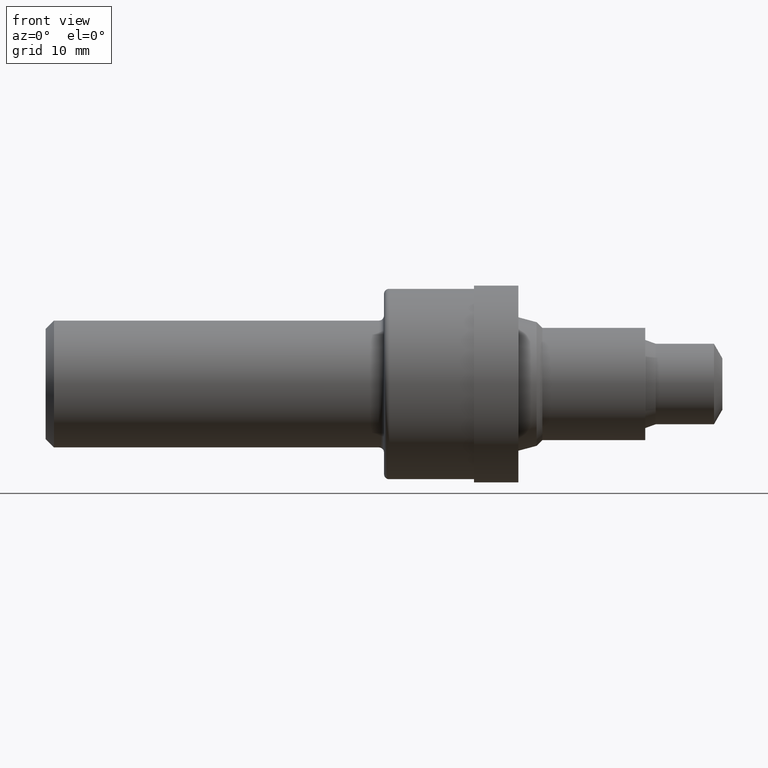
[diagram: clean part render]
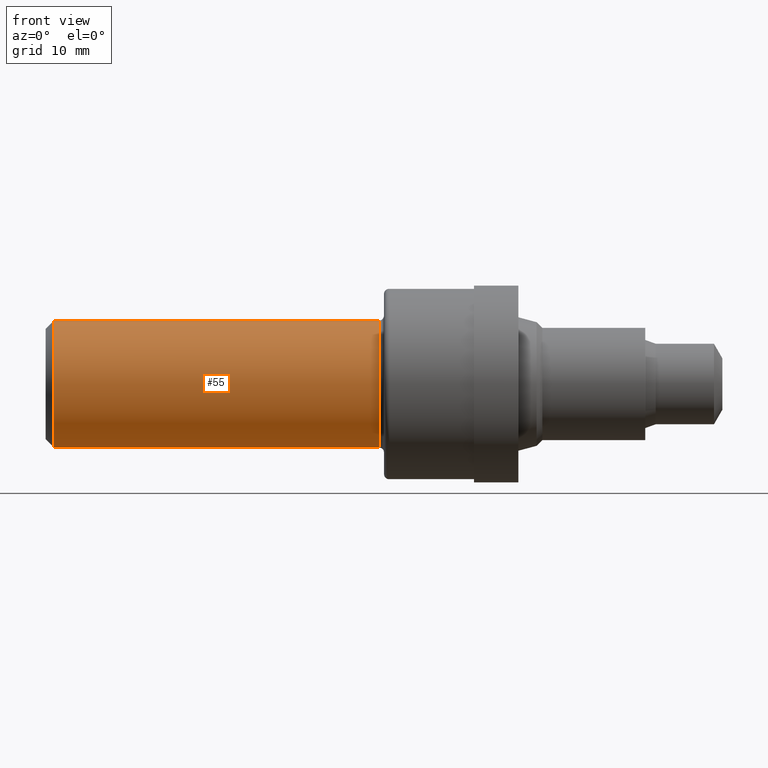
[diagram: same view with one face highlighted and labeled with its STEP entity id]
A machine part, front view. The second image highlights one B-rep face of the part: STEP entity #55.
In plain terms, the highlighted cylindrical surface (partial cylindrical patch) has radius 9.5212 mm, axis along (-1, -0, -0).
Its self-contained STEP definition (entity closure, byte-faithful):
#52 = DIRECTION ( 'NONE',  ( -1.000000000000000000, -0.0000000000000000000, -0.0000000000000000000 ) ) ;
#55 = ADVANCED_FACE ( 'NONE', ( #627 ), #465, .T. ) ;
#64 = EDGE_CURVE ( 'NONE', #615, #208, #331, .T. ) ;
#85 = ORIENTED_EDGE ( 'NONE', *, *, #583, .T. ) ;
#134 = VERTEX_POINT ( 'NONE', #672 ) ;
#181 = DIRECTION ( 'NONE',  ( -1.000000000000000000, -0.0000000000000000000, -0.0000000000000000000 ) ) ;
#208 = VERTEX_POINT ( 'NONE', #398 ) ;
#297 = CARTESIAN_POINT ( 'NONE',  ( 1.969999999999999973, 4.590588526603859294E-17, -0.3748500000000005161 ) ) ;
#302 = CARTESIAN_POINT ( 'NONE',  ( 1.969999999999999973, 0.0000000000000000000, 0.3748500000000005161 ) ) ;
#328 = AXIS2_PLACEMENT_3D ( 'NONE', #551, #181, #613 ) ;
#329 = ORIENTED_EDGE ( 'NONE', *, *, #64, .T. ) ;
#331 = LINE ( 'NONE', #488, #806 ) ;
#378 = EDGE_CURVE ( 'NONE', #134, #208, #578, .T. ) ;
#391 = AXIS2_PLACEMENT_3D ( 'NONE', #745, #680, #818 ) ;
#393 = CIRCLE ( 'NONE', #401, 0.3748500000000005161 ) ;
#398 = CARTESIAN_POINT ( 'NONE',  ( 0.05000000000000000278, 4.590588526603853748E-17, 0.3748500000000000165 ) ) ;
#401 = AXIS2_PLACEMENT_3D ( 'NONE', #466, #664, #420 ) ;
#420 = DIRECTION ( 'NONE',  ( 0.0000000000000000000, 0.0000000000000000000, 1.000000000000000000 ) ) ;
#449 = LINE ( 'NONE', #478, #744 ) ;
#457 = EDGE_CURVE ( 'NONE', #648, #134, #449, .T. ) ;
#465 = CYLINDRICAL_SURFACE ( 'NONE', #391, 0.3748500000000002386 ) ;
#466 = CARTESIAN_POINT ( 'NONE',  ( 1.969999999999999973, 0.0000000000000000000, 0.0000000000000000000 ) ) ;
#478 = CARTESIAN_POINT ( 'NONE',  ( 0.0000000000000000000, 4.590588526603856213E-17, -0.3748500000000002386 ) ) ;
#488 = CARTESIAN_POINT ( 'NONE',  ( 0.0000000000000000000, 0.0000000000000000000, 0.3748500000000002386 ) ) ;
#501 = ORIENTED_EDGE ( 'NONE', *, *, #457, .F. ) ;
#551 = CARTESIAN_POINT ( 'NONE',  ( 0.05000000000000000278, 0.0000000000000000000, 0.0000000000000000000 ) ) ;
#578 = CIRCLE ( 'NONE', #328, 0.3748500000000000165 ) ;
#583 = EDGE_CURVE ( 'NONE', #648, #615, #393, .T. ) ;
#613 = DIRECTION ( 'NONE',  ( 0.0000000000000000000, 0.0000000000000000000, 1.000000000000000000 ) ) ;
#615 = VERTEX_POINT ( 'NONE', #302 ) ;
#627 = FACE_OUTER_BOUND ( 'NONE', #671, .T. ) ;
#648 = VERTEX_POINT ( 'NONE', #297 ) ;
#664 = DIRECTION ( 'NONE',  ( -1.000000000000000000, -0.0000000000000000000, -0.0000000000000000000 ) ) ;
#671 = EDGE_LOOP ( 'NONE', ( #501, #85, #329, #711 ) ) ;
#672 = CARTESIAN_POINT ( 'NONE',  ( 0.05000000000000000278, 0.0000000000000000000, -0.3748500000000000165 ) ) ;
#680 = DIRECTION ( 'NONE',  ( -1.000000000000000000, -0.0000000000000000000, -0.0000000000000000000 ) ) ;
#709 = DIRECTION ( 'NONE',  ( -1.000000000000000000, -0.0000000000000000000, -0.0000000000000000000 ) ) ;
#711 = ORIENTED_EDGE ( 'NONE', *, *, #378, .F. ) ;
#744 = VECTOR ( 'NONE', #709, 39.37007874015748143 ) ;
#745 = CARTESIAN_POINT ( 'NONE',  ( 0.0000000000000000000, 0.0000000000000000000, 0.0000000000000000000 ) ) ;
#806 = VECTOR ( 'NONE', #52, 39.37007874015748143 ) ;
#818 = DIRECTION ( 'NONE',  ( 0.0000000000000000000, 0.0000000000000000000, 1.000000000000000000 ) ) ;